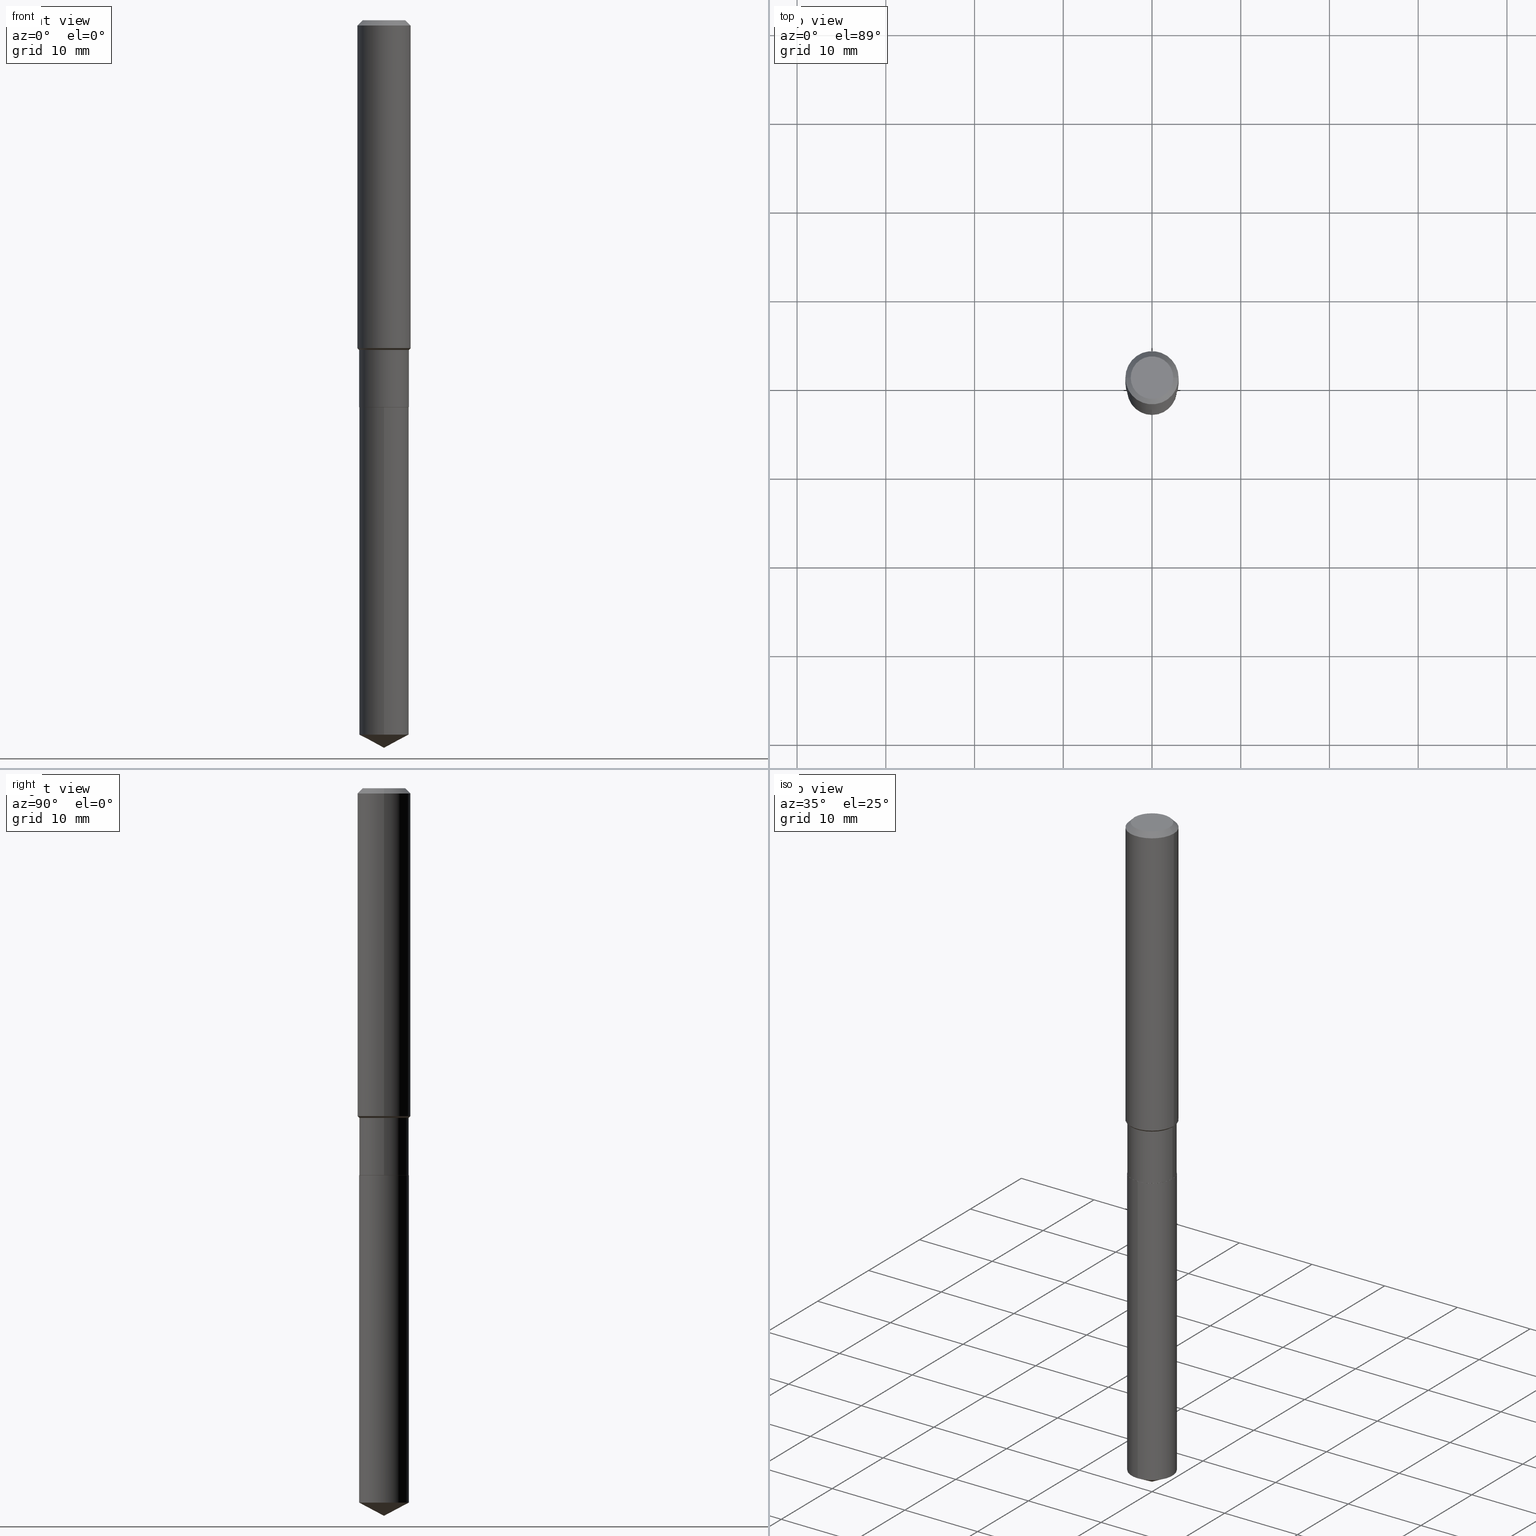
[diagram: canonical four-view strip — front | top / right | iso, engineering-drawing reading convention]
A machine part, canonical four-view strip (front | top / right | iso — engineering-drawing reading convention). The complete STEP part file that produces these views, byte-faithful:
ISO-10303-21;
HEADER;
FILE_DESCRIPTION (( 'STEP AP203' ),
    '1' );
FILE_NAME ('64826.STEP',
    '2024-04-24T19:03:40',
    ( '' ),
    ( '' ),
    'SwSTEP 2.0',
    'SolidWorks 2023',
    '' );
FILE_SCHEMA (( 'CONFIG_CONTROL_DESIGN' ));
ENDSEC;

DATA;
#1 = EDGE_CURVE ( 'NONE', #90, #467, #446, .T. ) ;
#2 = CARTESIAN_POINT ( 'NONE',  ( 7.833733661755878674E-16, 0.1102499999999889402, -3.169679035159322478 ) ) ;
#3 = DIRECTION ( 'NONE',  ( -2.445468806185136597E-29, 3.491481338843145583E-15, 1.000000000000000000 ) ) ;
#4 = AXIS2_PLACEMENT_3D ( 'NONE', #280, #368, #142 ) ;
#5 = CARTESIAN_POINT ( 'NONE',  ( -0.1180999999999999966, 7.422191030112725094E-16, -0.02362000000000014088 ) ) ;
#6 = APPROVAL ( #490, 'UNSPECIFIED' ) ;
#7 = DIRECTION ( 'NONE',  ( -2.445468806185136597E-29, 3.491481338843145583E-15, 1.000000000000000000 ) ) ;
#8 = AXIS2_PLACEMENT_3D ( 'NONE', #356, #353, #18 ) ;
#9 = ORIENTED_EDGE ( 'NONE', *, *, #259, .T. ) ;
#10 = CARTESIAN_POINT ( 'NONE',  ( -0.1102500000000000008, -4.766161647848728017E-15, -1.716000000000000192 ) ) ;
#11 = ORIENTED_EDGE ( 'NONE', *, *, #444, .T. ) ;
#12 = CIRCLE ( 'NONE', #234, 0.1102499999999999730 ) ;
#13 = EDGE_CURVE ( 'NONE', #433, #245, #105, .T. ) ;
#14 = DIRECTION ( 'NONE',  ( 1.000000000000000000, -6.982962677686266711E-15, 4.876176775795936353E-29 ) ) ;
#15 = ORIENTED_EDGE ( 'NONE', *, *, #468, .F. ) ;
#16 = CIRCLE ( 'NONE', #201, 0.09447999999999998066 ) ;
#17 = CC_DESIGN_SECURITY_CLASSIFICATION ( #488, ( #96 ) ) ;
#18 = DIRECTION ( 'NONE',  ( 1.000000000000000000, -6.982962677686266711E-15, 4.876176775795936353E-29 ) ) ;
#19 = VERTEX_POINT ( 'NONE', #401 ) ;
#20 = CIRCLE ( 'NONE', #331, 0.1102500000000000008 ) ;
#21 = CARTESIAN_POINT ( 'NONE',  ( 4.197647205816787040E-29, -5.993127718124259988E-15, -1.716500000000000137 ) ) ;
#22 = VERTEX_POINT ( 'NONE', #330 ) ;
#23 = PERSON_AND_ORGANIZATION ( #26, #48 ) ;
#24 = CIRCLE ( 'NONE', #274, 0.1097500000000000003 ) ;
#25 = DIRECTION ( 'NONE',  ( -1.000000000000000000, 6.982962677686266711E-15, 0.000000000000000000 ) ) ;
#26 = PERSON ( 'UNSPECIFIED', 'UNSPECIFIED', 'UNSPECIFIED', ('UNSPECIFIED'), ('UNSPECIFIED'), ('UNSPECIFIED') ) ;
#27 = ADVANCED_FACE ( 'NONE', ( #364 ), #484, .T. ) ;
#28 = COORDINATED_UNIVERSAL_TIME_OFFSET ( 5, 0, .BEHIND. ) ;
#29 = DIRECTION ( 'NONE',  ( -2.445468806185136597E-29, 3.491481338843145583E-15, 1.000000000000000000 ) ) ;
#30 = MECHANICAL_CONTEXT ( 'NONE', #63, 'mechanical' ) ;
#31 = DIRECTION ( 'NONE',  ( 1.000000000000000000, -6.982962677686270655E-15, 0.000000000000000000 ) ) ;
#32 = PERSON_AND_ORGANIZATION ( #26, #48 ) ;
#33 = PLANE ( 'NONE',  #487 ) ;
#34 = LOCAL_TIME ( 15, 3, 40.00000000000000000, #287 ) ;
#35 = VECTOR ( 'NONE', #186, 39.37007874015748143 ) ;
#36 = DIRECTION ( 'NONE',  ( -2.445468806185136877E-29, 3.491481338843145188E-15, 1.000000000000000000 ) ) ;
#37 = DIRECTION ( 'NONE',  ( -1.000000000000000000, 6.982962677686266711E-15, 0.000000000000000000 ) ) ;
#38 = DIRECTION ( 'NONE',  ( 1.000000000000000000, -6.982962677686270655E-15, 0.000000000000000000 ) ) ;
#39 = ADVANCED_FACE ( 'NONE', ( #403 ), #442, .T. ) ;
#40 = CYLINDRICAL_SURFACE ( 'NONE', #135, 0.1102500000000000008 ) ;
#41 = VECTOR ( 'NONE', #195, 39.37007874015748143 ) ;
#42 = ORIENTED_EDGE ( 'NONE', *, *, #358, .F. ) ;
#43 = EDGE_CURVE ( 'NONE', #245, #166, #12, .T. ) ;
#44 = DIRECTION ( 'NONE',  ( -2.445459280749813297E-29, 3.491494979808682448E-15, 1.000000000000000000 ) ) ;
#45 = DIRECTION ( 'NONE',  ( -6.982962677686266711E-15, -1.000000000000000000, 3.541896320645576252E-15 ) ) ;
#46 = ADVANCED_FACE ( 'NONE', ( #407 ), #33, .F. ) ;
#47 = FACE_OUTER_BOUND ( 'NONE', #341, .T. ) ;
#48 = ORGANIZATION ( 'UNSPECIFIED', 'UNSPECIFIED', '' ) ;
#50 = EDGE_LOOP ( 'NONE', ( #428, #137, #473, #457 ) ) ;
#49 = CIRCLE ( 'NONE', #124, 0.1102499999999999730 ) ;
#51 = DIRECTION ( 'NONE',  ( 1.000000000000000000, -6.982962677686270655E-15, 0.000000000000000000 ) ) ;
#52 = ORIENTED_EDGE ( 'NONE', *, *, #395, .T. ) ;
#53 = LINE ( 'NONE', #197, #41 ) ;
#54 = ORIENTED_EDGE ( 'NONE', *, *, #482, .F. ) ;
#55 = CYLINDRICAL_SURFACE ( 'NONE', #8, 0.1102499999999999869 ) ;
#56 = ORIENTED_EDGE ( 'NONE', *, *, #354, .F. ) ;
#57 = PRODUCT ( '64826', '64826', '', ( #30 ) ) ;
#58 = DIRECTION ( 'NONE',  ( -2.438088387897960049E-29, 3.491481338843145188E-15, 1.000000000000000000 ) ) ;
#59 = ORIENTED_EDGE ( 'NONE', *, *, #289, .F. ) ;
#60 =( CONVERSION_BASED_UNIT ( 'INCH', #240 ) LENGTH_UNIT ( ) NAMED_UNIT ( #310 ) );
#61 = VERTEX_POINT ( 'NONE', #70 ) ;
#62 = DATE_AND_TIME ( #406, #370 ) ;
#63 = APPLICATION_CONTEXT ( 'configuration controlled 3d designs of mechanical parts and assemblies' ) ;
#64 = DIRECTION ( 'NONE',  ( 1.000000000000000000, -6.982962677686264344E-15, 0.000000000000000000 ) ) ;
#65 = CC_DESIGN_APPROVAL ( #471, ( #223 ) ) ;
#66 = CIRCLE ( 'NONE', #335, 0.1102500000000000008 ) ;
#67 =( NAMED_UNIT ( * ) SI_UNIT ( $, .STERADIAN. ) SOLID_ANGLE_UNIT ( ) );
#68 = DIRECTION ( 'NONE',  ( 0.7071067811866199593, -2.468850131083015945E-15, 0.7071067811864750752 ) ) ;
#69 = EDGE_CURVE ( 'NONE', #270, #90, #478, .T. ) ;
#70 = CARTESIAN_POINT ( 'NONE',  ( -0.1180999999999999966, -1.742223384720917499E-15, -0.02362000000000014088 ) ) ;
#71 = CC_DESIGN_DATE_AND_TIME_ASSIGNMENT ( #327, #480, ( #223 ) ) ;
#72 = DIRECTION ( 'NONE',  ( 1.000000000000000000, 0.000000000000000000, 0.000000000000000000 ) ) ;
#73 = CARTESIAN_POINT ( 'NONE',  ( 7.833733661755523687E-16, 0.1102499999999940195, -1.716500000000000359 ) ) ;
#74 = CONICAL_SURFACE ( 'NONE', #140, 0.1180999999999999966, 0.7853981633974460586 ) ;
#75 = AXIS2_PLACEMENT_3D ( 'NONE', #337, #220, #190 ) ;
#76 = CIRCLE ( 'NONE', #424, 0.1181000000000001632 ) ;
#77 = DIRECTION ( 'NONE',  ( -2.445459280749813297E-29, 3.491494979808682448E-15, 1.000000000000000000 ) ) ;
#78 = CARTESIAN_POINT ( 'NONE',  ( -8.838323189251467147E-28, 1.261888624473333641E-13, 36.14177874015747705 ) ) ;
#79 = FACE_OUTER_BOUND ( 'NONE', #119, .T. ) ;
#80 = LOCAL_TIME ( 15, 3, 40.00000000000000000, #144 ) ;
#81 = LINE ( 'NONE', #189, #191 ) ;
#82 = EDGE_CURVE ( 'NONE', #90, #270, #24, .T. ) ;
#83 = LINE ( 'NONE', #332, #132 ) ;
#84 = CARTESIAN_POINT ( 'NONE',  ( 0.1181000000000001632, -5.904967814318468141E-15, -1.455049999999999732 ) ) ;
#85 = ORIENTED_EDGE ( 'NONE', *, *, #390, .T. ) ;
#86 = CONICAL_SURFACE ( 'NONE', #263, 0.1097500000000000003, 0.7853981633975507526 ) ;
#87 = CARTESIAN_POINT ( 'NONE',  ( 4.716267017698007905E-46, -6.733579360998555036E-32, -1.928573779297252010E-17 ) ) ;
#88 = ORIENTED_EDGE ( 'NONE', *, *, #358, .T. ) ;
#89 = DIRECTION ( 'NONE',  ( -1.000000000000000000, 6.982962677686265922E-15, -4.876176775795935793E-29 ) ) ;
#90 = VERTEX_POINT ( 'NONE', #477 ) ;
#91 = EDGE_CURVE ( 'NONE', #22, #19, #475, .T. ) ;
#92 = FACE_OUTER_BOUND ( 'NONE', #360, .T. ) ;
#93 = ORIENTED_EDGE ( 'NONE', *, *, #242, .T. ) ;
#94 = CARTESIAN_POINT ( 'NONE',  ( 0.1102500000000000008, -6.761253612669749957E-15, -1.716000000000000192 ) ) ;
#95 = VERTEX_POINT ( 'NONE', #147 ) ;
#96 = PRODUCT_DEFINITION_FORMATION_WITH_SPECIFIED_SOURCE ( 'ANY', '', #57, .NOT_KNOWN. ) ;
#97 = CONICAL_SURFACE ( 'NONE', #372, 74.04434902938321272, 1.082104136236484715 ) ;
#98 = EDGE_CURVE ( 'NONE', #467, #433, #115, .T. ) ;
#99 = CALENDAR_DATE ( 2024, 24, 4 ) ;
#100 = PERSON_AND_ORGANIZATION_ROLE ( 'design_supplier' ) ;
#101 = DIRECTION ( 'NONE',  ( -2.445468806185136597E-29, 3.491481338843145583E-15, 1.000000000000000000 ) ) ;
#102 = PERSON_AND_ORGANIZATION ( #26, #48 ) ;
#103 = FACE_OUTER_BOUND ( 'NONE', #230, .T. ) ;
#104 = CARTESIAN_POINT ( 'NONE',  ( 4.197647205816787040E-29, -5.993127718124259988E-15, -1.716500000000000137 ) ) ;
#105 = LINE ( 'NONE', #365, #207 ) ;
#106 = CARTESIAN_POINT ( 'NONE',  ( 0.1097500000000000003, -6.759507872000327664E-15, -1.716500000000000137 ) ) ;
#107 = AXIS2_PLACEMENT_3D ( 'NONE', #211, #101, #175 ) ;
#108 = CC_DESIGN_APPROVAL ( #6, ( #488 ) ) ;
#109 = CONICAL_SURFACE ( 'NONE', #443, 0.1097500000000000003, 0.7853981633975507526 ) ;
#110 = EDGE_CURVE ( 'NONE', #61, #125, #170, .T. ) ;
#111 = DIRECTION ( 'NONE',  ( -2.445468806185136597E-29, 3.491481338843145583E-15, 1.000000000000000000 ) ) ;
#112 = ORIENTED_EDGE ( 'NONE', *, *, #242, .F. ) ;
#113 = CARTESIAN_POINT ( 'NONE',  ( 4.197647205816787040E-29, -5.993127718124259988E-15, -1.716500000000000137 ) ) ;
#114 = CARTESIAN_POINT ( 'NONE',  ( 3.577476316568236178E-29, -5.107688050593637879E-15, -1.462900000000000089 ) ) ;
#115 = CIRCLE ( 'NONE', #308, 0.1102500000000000008 ) ;
#116 = APPROVAL_ROLE ( '' ) ;
#117 = DIRECTION ( 'NONE',  ( 1.000000000000000000, -6.982962677686267499E-15, 4.875432709231658792E-29 ) ) ;
#118 = LINE ( 'NONE', #334, #474 ) ;
#119 = EDGE_LOOP ( 'NONE', ( #112, #145, #121, #430 ) ) ;
#120 = CARTESIAN_POINT ( 'NONE',  ( 0.1102499999999999730, -5.877559685808549352E-15, -1.462900000000000089 ) ) ;
#121 = ORIENTED_EDGE ( 'NONE', *, *, #438, .T. ) ;
#122 = DIRECTION ( 'NONE',  ( -2.445468806185136597E-29, 3.491481338843145583E-15, 1.000000000000000000 ) ) ;
#123 = ADVANCED_FACE ( 'NONE', ( #209 ), #74, .T. ) ;
#125 = VERTEX_POINT ( 'NONE', #476 ) ;
#124 = AXIS2_PLACEMENT_3D ( 'NONE', #275, #165, #51 ) ;
#126 = VECTOR ( 'NONE', #312, 39.37007874015748143 ) ;
#127 = DIRECTION ( 'NONE',  ( -2.445468806185136597E-29, 3.491481338843145583E-15, 1.000000000000000000 ) ) ;
#128 = ORIENTED_EDGE ( 'NONE', *, *, #333, .T. ) ;
#129 = EDGE_CURVE ( 'NONE', #261, #228, #282, .T. ) ;
#130 = LINE ( 'NONE', #272, #156 ) ;
#131 = EDGE_LOOP ( 'NONE', ( #85, #236, #267, #56 ) ) ;
#132 = VECTOR ( 'NONE', #381, 39.37007874015748143 ) ;
#133 = LINE ( 'NONE', #283, #239 ) ;
#134 = EDGE_LOOP ( 'NONE', ( #357, #393 ) ) ;
#135 = AXIS2_PLACEMENT_3D ( 'NONE', #300, #455, #339 ) ;
#136 = APPROVAL_DATE_TIME ( #62, #471 ) ;
#137 = ORIENTED_EDGE ( 'NONE', *, *, #286, .F. ) ;
#138 = DATE_AND_TIME ( #173, #265 ) ;
#139 = DIRECTION ( 'NONE',  ( -2.445468806185136597E-29, 3.491481338843145583E-15, 1.000000000000000000 ) ) ;
#140 = AXIS2_PLACEMENT_3D ( 'NONE', #288, #172, #25 ) ;
#141 = PERSON_AND_ORGANIZATION ( #26, #48 ) ;
#142 = DIRECTION ( 'NONE',  ( 1.000000000000000000, -6.982962677686266711E-15, 4.876176775795936353E-29 ) ) ;
#143 = CIRCLE ( 'NONE', #464, 0.1102500000000000008 ) ;
#144 = COORDINATED_UNIVERSAL_TIME_OFFSET ( 5, 0, .BEHIND. ) ;
#145 = ORIENTED_EDGE ( 'NONE', *, *, #43, .T. ) ;
#146 = DIRECTION ( 'NONE',  ( 0.000000000000000000, 0.000000000000000000, 1.000000000000000000 ) ) ;
#147 = CARTESIAN_POINT ( 'NONE',  ( -7.698716352148689729E-16, -0.1102500000000059960, -1.716499999999999915 ) ) ;
#148 = CARTESIAN_POINT ( 'NONE',  ( -8.838323189251467147E-28, 1.261888624473333641E-13, 36.14177874015747705 ) ) ;
#149 = DIRECTION ( 'NONE',  ( 0.7071067811865459074, -7.319954787623249734E-15, -0.7071067811865491270 ) ) ;
#150 = APPROVAL_DATE_TIME ( #413, #6 ) ;
#151 = DIRECTION ( 'NONE',  ( -2.445468806185136597E-29, 3.491481338843145583E-15, 1.000000000000000000 ) ) ;
#152 = CARTESIAN_POINT ( 'NONE',  ( -0.1097500000000000003, -5.210657838453439520E-15, -1.716500000000000137 ) ) ;
#153 = CC_DESIGN_DATE_AND_TIME_ASSIGNMENT ( #138, #281, ( #488 ) ) ;
#154 = CC_DESIGN_APPROVAL ( #194, ( #96 ) ) ;
#155 = CYLINDRICAL_SURFACE ( 'NONE', #75, 0.1181000000000000799 ) ;
#156 = VECTOR ( 'NONE', #429, 39.37007874015748143 ) ;
#157 = DIRECTION ( 'NONE',  ( 1.000000000000000000, -6.982962677686266711E-15, 0.000000000000000000 ) ) ;
#158 = EDGE_LOOP ( 'NONE', ( #305, #52, #448, #15 ) ) ;
#159 = CC_DESIGN_PERSON_AND_ORGANIZATION_ASSIGNMENT ( #32, #177, ( #223 ) ) ;
#160 = CARTESIAN_POINT ( 'NONE',  ( 4.197647205816787040E-29, -5.993127718124259988E-15, -1.716500000000000137 ) ) ;
#161 = ORIENTED_EDGE ( 'NONE', *, *, #395, .F. ) ;
#162 = AXIS2_PLACEMENT_3D ( 'NONE', #185, #224, #37 ) ;
#163 = PLANE ( 'NONE',  #181 ) ;
#164 = ORIENTED_EDGE ( 'NONE', *, *, #13, .T. ) ;
#165 = DIRECTION ( 'NONE',  ( -2.445468806185136597E-29, 3.491481338843145583E-15, 1.000000000000000000 ) ) ;
#166 = VERTEX_POINT ( 'NONE', #437 ) ;
#167 = ADVANCED_FACE ( 'NONE', ( #103 ), #86, .T. ) ;
#168 = DIRECTION ( 'NONE',  ( -2.445459280749813297E-29, 3.491494979808682448E-15, 1.000000000000000000 ) ) ;
#169 = ORIENTED_EDGE ( 'NONE', *, *, #387, .F. ) ;
#170 = CIRCLE ( 'NONE', #351, 0.1180999999999999966 ) ;
#171 = PERSON_AND_ORGANIZATION_ROLE ( 'creator' ) ;
#172 = DIRECTION ( 'NONE',  ( 2.445468806185136597E-29, -3.491481338843145583E-15, -1.000000000000000000 ) ) ;
#173 = CALENDAR_DATE ( 2024, 24, 4 ) ;
#174 = ORIENTED_EDGE ( 'NONE', *, *, #286, .T. ) ;
#175 = DIRECTION ( 'NONE',  ( 1.000000000000000000, -6.982962677686264344E-15, 0.000000000000000000 ) ) ;
#176 = AXIS2_PLACEMENT_3D ( 'NONE', #296, #151, #486 ) ;
#177 = PERSON_AND_ORGANIZATION_ROLE ( 'creator' ) ;
#178 = CARTESIAN_POINT ( 'NONE',  ( 4.197647205816787040E-29, -5.993127718124259988E-15, -1.716500000000000137 ) ) ;
#179 = ADVANCED_FACE ( 'NONE', ( #292 ), #361, .T. ) ;
#180 = APPROVAL_PERSON_ORGANIZATION ( #102, #6, #116 ) ;
#181 = AXIS2_PLACEMENT_3D ( 'NONE', #200, #58, #462 ) ;
#182 = PERSON_AND_ORGANIZATION ( #26, #48 ) ;
#183 = DIRECTION ( 'NONE',  ( -6.982962677686266711E-15, -1.000000000000000000, 2.477866660919966807E-15 ) ) ;
#184 = ADVANCED_FACE ( 'NONE', ( #79 ), #255, .T. ) ;
#185 = CARTESIAN_POINT ( 'NONE',  ( 5.776197320209327532E-31, -8.246878922347559293E-17, -0.02362000000000014088 ) ) ;
#186 = DIRECTION ( 'NONE',  ( -2.445468806185136877E-29, 3.491481338843145188E-15, 1.000000000000000000 ) ) ;
#187 = EDGE_CURVE ( 'NONE', #22, #261, #83, .T. ) ;
#188 = PLANE ( 'NONE',  #439 ) ;
#189 = CARTESIAN_POINT ( 'NONE',  ( -0.1102499999999999730, -4.324314684418127714E-15, -1.462900000000000089 ) ) ;
#190 = DIRECTION ( 'NONE',  ( 1.000000000000000000, -6.982962677686266711E-15, 4.876176775795936353E-29 ) ) ;
#191 = VECTOR ( 'NONE', #411, 39.37007874015748143 ) ;
#192 = DIRECTION ( 'NONE',  ( -2.445468806185136597E-29, 3.491481338843145583E-15, 1.000000000000000000 ) ) ;
#193 = VERTEX_POINT ( 'NONE', #222 ) ;
#194 = APPROVAL ( #445, 'UNSPECIFIED' ) ;
#195 = DIRECTION ( 'NONE',  ( -0.7071067811866199593, 7.493145998870616062E-15, 0.7071067811864750752 ) ) ;
#196 = EDGE_LOOP ( 'NONE', ( #352, #384, #378, #206 ) ) ;
#197 = CARTESIAN_POINT ( 'NONE',  ( -0.1097500000000000003, -5.213307065627549933E-15, -1.716500000000000137 ) ) ;
#198 = EDGE_LOOP ( 'NONE', ( #88, #93, #59, #297 ) ) ;
#199 = CLOSED_SHELL ( 'NONE', ( #27, #268, #231, #278, #46 ) ) ;
#200 = CARTESIAN_POINT ( 'NONE',  ( 4.197647205816787040E-29, -5.993127718124259988E-15, -1.716500000000000137 ) ) ;
#201 = AXIS2_PLACEMENT_3D ( 'NONE', #87, #122, #421 ) ;
#202 = EDGE_LOOP ( 'NONE', ( #253, #426, #161 ) ) ;
#203 = LINE ( 'NONE', #120, #126 ) ;
#204 = ADVANCED_FACE ( 'NONE', ( #489 ), #392, .T. ) ;
#205 = ORIENTED_EDGE ( 'NONE', *, *, #458, .F. ) ;
#206 = ORIENTED_EDGE ( 'NONE', *, *, #1, .F. ) ;
#207 = VECTOR ( 'NONE', #36, 39.37007874015748143 ) ;
#208 = PERSON_AND_ORGANIZATION ( #26, #48 ) ;
#209 = FACE_OUTER_BOUND ( 'NONE', #50, .T. ) ;
#210 = DIRECTION ( 'NONE',  ( -2.445468806185136877E-29, 3.491481338843145188E-15, 1.000000000000000000 ) ) ;
#211 = CARTESIAN_POINT ( 'NONE',  ( 4.197647205816787040E-29, -5.993127718124259988E-15, -1.716500000000000137 ) ) ;
#212 = ADVANCED_FACE ( 'NONE', ( #382 ), #155, .T. ) ;
#213 = DIRECTION ( 'NONE',  ( -6.165590087286828929E-15, -0.8829475928589255451, 0.4694715627858935258 ) ) ;
#214 = CALENDAR_DATE ( 2024, 24, 4 ) ;
#215 = CC_DESIGN_PERSON_AND_ORGANIZATION_ASSIGNMENT ( #208, #362, ( #488 ) ) ;
#216 = DIRECTION ( 'NONE',  ( 2.445459280749813016E-29, -3.491494979808682448E-15, -1.000000000000000000 ) ) ;
#217 = LOCAL_TIME ( 15, 3, 40.00000000000000000, #249 ) ;
#218 = DIRECTION ( 'NONE',  ( -2.445459280749813297E-29, 3.491494979808682448E-15, 1.000000000000000000 ) ) ;
#219 = ADVANCED_BREP_SHAPE_REPRESENTATION ( '64826', ( #452, #271, #302 ), #306 ) ;
#220 = DIRECTION ( 'NONE',  ( -2.445468806185136597E-29, 3.491481338843145583E-15, 1.000000000000000000 ) ) ;
#221 = AXIS2_PLACEMENT_3D ( 'NONE', #114, #3, #38 ) ;
#222 = CARTESIAN_POINT ( 'NONE',  ( 0.09447999999999998066, -7.704367267948738690E-16, -1.928573779296752193E-17 ) ) ;
#223 = PRODUCT_DEFINITION ( 'UNKNOWN', '', #96, #369 ) ;
#224 = DIRECTION ( 'NONE',  ( 2.445468806185136597E-29, -3.491481338843145583E-15, -1.000000000000000000 ) ) ;
#225 = DIRECTION ( 'NONE',  ( -2.445459280749813297E-29, 3.491494979808682448E-15, 1.000000000000000000 ) ) ;
#226 = DIRECTION ( 'NONE',  ( -2.445459280749813297E-29, 3.491494979808682448E-15, 1.000000000000000000 ) ) ;
#227 = CARTESIAN_POINT ( 'NONE',  ( 5.776197320209327532E-31, -8.246878922347559293E-17, -0.02362000000000014088 ) ) ;
#228 = VERTEX_POINT ( 'NONE', #303 ) ;
#229 = LINE ( 'NONE', #304, #251 ) ;
#230 = EDGE_LOOP ( 'NONE', ( #423, #355, #264, #247 ) ) ;
#231 = ADVANCED_FACE ( 'NONE', ( #254 ), #294, .T. ) ;
#232 = CARTESIAN_POINT ( 'NONE',  ( 3.558279386439682894E-29, -5.080279922083718301E-15, -1.455049999999999732 ) ) ;
#233 = ORIENTED_EDGE ( 'NONE', *, *, #98, .T. ) ;
#234 = AXIS2_PLACEMENT_3D ( 'NONE', #435, #29, #31 ) ;
#235 = DIRECTION ( 'NONE',  ( -2.445459280749813297E-29, 3.491494979808682448E-15, 1.000000000000000000 ) ) ;
#236 = ORIENTED_EDGE ( 'NONE', *, *, #129, .T. ) ;
#237 =( LENGTH_UNIT ( ) NAMED_UNIT ( * ) SI_UNIT ( $, .METRE. ) );
#238 = EDGE_LOOP ( 'NONE', ( #318, #348, #250, #338 ) ) ;
#239 = VECTOR ( 'NONE', #210, 39.37007874015748143 ) ;
#240 = LENGTH_MEASURE_WITH_UNIT ( LENGTH_MEASURE( 0.02539999999999999897 ), #237 );
#241 = DIRECTION ( 'NONE',  ( -2.445468806185136597E-29, 3.491481338843145583E-15, 1.000000000000000000 ) ) ;
#242 = EDGE_CURVE ( 'NONE', #245, #293, #81, .T. ) ;
#243 = VECTOR ( 'NONE', #68, 39.37007874015748143 ) ;
#244 = PERSON_AND_ORGANIZATION ( #26, #48 ) ;
#245 = VERTEX_POINT ( 'NONE', #418 ) ;
#246 = AXIS2_PLACEMENT_3D ( 'NONE', #227, #192, #157 ) ;
#247 = ORIENTED_EDGE ( 'NONE', *, *, #340, .F. ) ;
#248 = CARTESIAN_POINT ( 'NONE',  ( 4.197647205816787040E-29, -5.993127718124259988E-15, -1.716500000000000137 ) ) ;
#249 = COORDINATED_UNIVERSAL_TIME_OFFSET ( 5, 0, .BEHIND. ) ;
#250 = ORIENTED_EDGE ( 'NONE', *, *, #333, .F. ) ;
#251 = VECTOR ( 'NONE', #235, 39.37007874015748143 ) ;
#252 = DIRECTION ( 'NONE',  ( 1.000000000000000000, -6.982962677686263555E-15, 0.000000000000000000 ) ) ;
#253 = ORIENTED_EDGE ( 'NONE', *, *, #187, .F. ) ;
#254 = FACE_OUTER_BOUND ( 'NONE', #202, .T. ) ;
#255 = CONICAL_SURFACE ( 'NONE', #221, 0.1102499999999999730, 0.7853981633974418397 ) ;
#256 = LINE ( 'NONE', #453, #35 ) ;
#257 = AXIS2_PLACEMENT_3D ( 'NONE', #432, #315, #347 ) ;
#258 = CARTESIAN_POINT ( 'NONE',  ( -0.1181000000000001632, -4.241128951151038526E-15, -1.455049999999999732 ) ) ;
#259 = EDGE_CURVE ( 'NONE', #284, #125, #256, .T. ) ;
#260 = FACE_OUTER_BOUND ( 'NONE', #346, .T. ) ;
#261 = VERTEX_POINT ( 'NONE', #2 ) ;
#262 = DIRECTION ( 'NONE',  ( -2.445468806185136597E-29, 3.491481338843145583E-15, 1.000000000000000000 ) ) ;
#263 = AXIS2_PLACEMENT_3D ( 'NONE', #113, #414, #373 ) ;
#264 = ORIENTED_EDGE ( 'NONE', *, *, #1, .T. ) ;
#265 = LOCAL_TIME ( 15, 3, 40.00000000000000000, #28 ) ;
#266 = DIRECTION ( 'NONE',  ( 2.438088387897960049E-29, -3.491481338843145188E-15, -1.000000000000000000 ) ) ;
#267 = ORIENTED_EDGE ( 'NONE', *, *, #366, .F. ) ;
#268 = ADVANCED_FACE ( 'NONE', ( #451 ), #97, .T. ) ;
#269 = DIRECTION ( 'NONE',  ( 1.000000000000000000, -6.982962677686264344E-15, 0.000000000000000000 ) ) ;
#270 = VERTEX_POINT ( 'NONE', #152 ) ;
#271 = MANIFOLD_SOLID_BREP ( 'Body-Move/Copy2[2]', #461 ) ;
#272 = CARTESIAN_POINT ( 'NONE',  ( -0.1181000000000000799, 8.391509709326788873E-16, -5.809262341591047988E-30 ) ) ;
#273 = EDGE_LOOP ( 'NONE', ( #420, #386, #415 ) ) ;
#274 = AXIS2_PLACEMENT_3D ( 'NONE', #104, #139, #64 ) ;
#275 = CARTESIAN_POINT ( 'NONE',  ( 3.577476316568236178E-29, -5.107688050593637879E-15, -1.462900000000000089 ) ) ;
#276 = AXIS2_PLACEMENT_3D ( 'NONE', #148, #44, #376 ) ;
#277 = ORIENTED_EDGE ( 'NONE', *, *, #13, .F. ) ;
#278 = ADVANCED_FACE ( 'NONE', ( #416 ), #40, .T. ) ;
#279 = APPROVAL_DATE_TIME ( #398, #194 ) ;
#280 = CARTESIAN_POINT ( 'NONE',  ( 0.000000000000000000, 0.000000000000000000, 0.000000000000000000 ) ) ;
#281 = DATE_TIME_ROLE ( 'classification_date' ) ;
#282 = LINE ( 'NONE', #73, #342 ) ;
#283 = CARTESIAN_POINT ( 'NONE',  ( 0.1102499999999999869, -7.698716352149107826E-16, 5.375984895315018903E-30 ) ) ;
#284 = VERTEX_POINT ( 'NONE', #84 ) ;
#285 = AXIS2_PLACEMENT_3D ( 'NONE', #317, #427, #14 ) ;
#286 = EDGE_CURVE ( 'NONE', #321, #193, #363, .T. ) ;
#287 = COORDINATED_UNIVERSAL_TIME_OFFSET ( 5, 0, .BEHIND. ) ;
#288 = CARTESIAN_POINT ( 'NONE',  ( 5.776197320209327532E-31, -8.246878922347559293E-17, -0.02362000000000014088 ) ) ;
#289 = EDGE_CURVE ( 'NONE', #284, #293, #76, .T. ) ;
#290 = APPROVAL_ROLE ( '' ) ;
#291 = CARTESIAN_POINT ( 'NONE',  ( 4.196424471413695360E-29, -5.991381977454838484E-15, -1.716000000000000192 ) ) ;
#292 = FACE_OUTER_BOUND ( 'NONE', #309, .T. ) ;
#293 = VERTEX_POINT ( 'NONE', #258 ) ;
#294 = CONICAL_SURFACE ( 'NONE', #276, 74.04434902938321272, 1.082104136236484715 ) ;
#295 = EDGE_CURVE ( 'NONE', #321, #61, #343, .T. ) ;
#296 = CARTESIAN_POINT ( 'NONE',  ( 3.577476316568236178E-29, -5.107688050593637879E-15, -1.462900000000000089 ) ) ;
#297 = ORIENTED_EDGE ( 'NONE', *, *, #438, .F. ) ;
#298 = CARTESIAN_POINT ( 'NONE',  ( 4.716267017698007905E-46, -6.733579360998555036E-32, -1.928573779297252010E-17 ) ) ;
#299 = SHAPE_DEFINITION_REPRESENTATION ( #485, #219 ) ;
#300 = CARTESIAN_POINT ( 'NONE',  ( 4.197647205816787040E-29, -5.993127718124259988E-15, -1.716500000000000137 ) ) ;
#301 = EDGE_CURVE ( 'NONE', #193, #125, #118, .T. ) ;
#302 = AXIS2_PLACEMENT_3D ( 'NONE', #483, #146, #72 ) ;
#303 = CARTESIAN_POINT ( 'NONE',  ( 7.833733661755882619E-16, 0.1102499999999940195, -1.716500000000000359 ) ) ;
#304 = CARTESIAN_POINT ( 'NONE',  ( -7.698716352148689729E-16, -0.1102500000000059960, -1.716499999999999915 ) ) ;
#305 = ORIENTED_EDGE ( 'NONE', *, *, #129, .F. ) ;
#306 =( GEOMETRIC_REPRESENTATION_CONTEXT ( 3 ) GLOBAL_UNCERTAINTY_ASSIGNED_CONTEXT ( ( #405 ) ) GLOBAL_UNIT_ASSIGNED_CONTEXT ( ( #60, #322, #67 ) ) REPRESENTATION_CONTEXT ( 'NONE', 'WORKASPACE' ) );
#307 = CARTESIAN_POINT ( 'NONE',  ( 4.197647205816787040E-29, -5.993127718124259988E-15, -1.716500000000000137 ) ) ;
#308 = AXIS2_PLACEMENT_3D ( 'NONE', #291, #241, #328 ) ;
#309 = EDGE_LOOP ( 'NONE', ( #169, #463, #128, #399 ) ) ;
#310 = DIMENSIONAL_EXPONENTS ( 1.000000000000000000, 0.000000000000000000, 0.000000000000000000, 0.000000000000000000, 0.000000000000000000, 0.000000000000000000, 0.000000000000000000 ) ;
#311 = APPROVAL_PERSON_ORGANIZATION ( #141, #471, #440 ) ;
#312 = DIRECTION ( 'NONE',  ( 0.7071067811865429098, -2.468850131082208940E-15, 0.7071067811865521247 ) ) ;
#313 = ADVANCED_FACE ( 'NONE', ( #260 ), #188, .F. ) ;
#314 = EDGE_LOOP ( 'NONE', ( #397, #389 ) ) ;
#315 = DIRECTION ( 'NONE',  ( -2.445459280749813297E-29, 3.491494979808682448E-15, 1.000000000000000000 ) ) ;
#316 = ORIENTED_EDGE ( 'NONE', *, *, #387, .T. ) ;
#317 = CARTESIAN_POINT ( 'NONE',  ( 0.000000000000000000, 0.000000000000000000, 0.000000000000000000 ) ) ;
#318 = ORIENTED_EDGE ( 'NONE', *, *, #289, .T. ) ;
#319 = APPROVAL_PERSON_ORGANIZATION ( #182, #194, #290 ) ;
#320 = APPLICATION_PROTOCOL_DEFINITION ( 'international standard', 'config_control_design', 1994, #63 ) ;
#321 = VERTEX_POINT ( 'NONE', #469 ) ;
#322 =( NAMED_UNIT ( * ) PLANE_ANGLE_UNIT ( ) SI_UNIT ( $, .RADIAN. ) );
#323 = CARTESIAN_POINT ( 'NONE',  ( 5.776197320209327532E-31, -8.246878922347559293E-17, -0.02362000000000014088 ) ) ;
#324 = APPLICATION_PROTOCOL_DEFINITION ( 'international standard', 'config_control_design', 1994, #336 ) ;
#325 = CARTESIAN_POINT ( 'NONE',  ( 7.894676196044622738E-29, -1.127159324331637047E-14, -3.228299999999999947 ) ) ;
#326 = VECTOR ( 'NONE', #213, 39.37007874015748854 ) ;
#327 = DATE_AND_TIME ( #214, #34 ) ;
#328 = DIRECTION ( 'NONE',  ( 1.000000000000000000, -6.982962677686269077E-15, 0.000000000000000000 ) ) ;
#329 = CC_DESIGN_PERSON_AND_ORGANIZATION_ASSIGNMENT ( #244, #171, ( #96 ) ) ;
#330 = CARTESIAN_POINT ( 'NONE',  ( 7.894676196044622738E-29, -1.127159324331637047E-14, -3.228299999999999947 ) ) ;
#331 = AXIS2_PLACEMENT_3D ( 'NONE', #21, #168, #472 ) ;
#332 = CARTESIAN_POINT ( 'NONE',  ( 7.894709183611673792E-29, -1.127154641388168452E-14, -3.228299999999999947 ) ) ;
#333 = EDGE_CURVE ( 'NONE', #125, #61, #417, .T. ) ;
#334 = CARTESIAN_POINT ( 'NONE',  ( 0.1180999999999999966, -8.926936027602933910E-16, -0.02362000000000014088 ) ) ;
#335 = AXIS2_PLACEMENT_3D ( 'NONE', #385, #262, #345 ) ;
#336 = APPLICATION_CONTEXT ( 'configuration controlled 3d designs of mechanical parts and assemblies' ) ;
#337 = CARTESIAN_POINT ( 'NONE',  ( 0.000000000000000000, 0.000000000000000000, 0.000000000000000000 ) ) ;
#338 = ORIENTED_EDGE ( 'NONE', *, *, #259, .F. ) ;
#339 = DIRECTION ( 'NONE',  ( -6.982962677686266711E-15, -1.000000000000000000, 2.477866660919966807E-15 ) ) ;
#340 = EDGE_CURVE ( 'NONE', #433, #467, #66, .T. ) ;
#341 = EDGE_LOOP ( 'NONE', ( #205, #11, #9, #450 ) ) ;
#342 = VECTOR ( 'NONE', #77, 39.37007874015748143 ) ;
#343 = LINE ( 'NONE', #5, #344 ) ;
#344 = VECTOR ( 'NONE', #375, 39.37007874015748143 ) ;
#345 = DIRECTION ( 'NONE',  ( 1.000000000000000000, -6.982962677686269077E-15, 0.000000000000000000 ) ) ;
#346 = EDGE_LOOP ( 'NONE', ( #174, #316 ) ) ;
#347 = DIRECTION ( 'NONE',  ( -6.982962677686266711E-15, -1.000000000000000000, 4.955733321839933614E-15 ) ) ;
#348 = ORIENTED_EDGE ( 'NONE', *, *, #458, .T. ) ;
#349 = CC_DESIGN_PERSON_AND_ORGANIZATION_ASSIGNMENT ( #434, #100, ( #96 ) ) ;
#350 = CYLINDRICAL_SURFACE ( 'NONE', #285, 0.1181000000000000799 ) ;
#351 = AXIS2_PLACEMENT_3D ( 'NONE', #323, #410, #481 ) ;
#352 = ORIENTED_EDGE ( 'NONE', *, *, #82, .T. ) ;
#353 = DIRECTION ( 'NONE',  ( -2.445468806185136597E-29, 3.491481338843145583E-15, 1.000000000000000000 ) ) ;
#354 = EDGE_CURVE ( 'NONE', #19, #95, #229, .T. ) ;
#355 = ORIENTED_EDGE ( 'NONE', *, *, #69, .T. ) ;
#356 = CARTESIAN_POINT ( 'NONE',  ( 0.000000000000000000, 0.000000000000000000, 0.000000000000000000 ) ) ;
#357 = ORIENTED_EDGE ( 'NONE', *, *, #366, .T. ) ;
#358 = EDGE_CURVE ( 'NONE', #166, #245, #49, .T. ) ;
#359 = APPROVAL_STATUS ( 'not_yet_approved' ) ;
#360 = EDGE_LOOP ( 'NONE', ( #277, #412, #470, #460 ) ) ;
#361 = CONICAL_SURFACE ( 'NONE', #162, 0.1180999999999999966, 0.7853981633974460586 ) ;
#362 = PERSON_AND_ORGANIZATION_ROLE ( 'classification_officer' ) ;
#363 = CIRCLE ( 'NONE', #377, 0.09447999999999998066 ) ;
#364 = FACE_OUTER_BOUND ( 'NONE', #131, .T. ) ;
#365 = CARTESIAN_POINT ( 'NONE',  ( -0.1102499999999999869, 7.833733661755103618E-16, -5.423125937006033469E-30 ) ) ;
#366 = EDGE_CURVE ( 'NONE', #95, #228, #143, .T. ) ;
#367 = PERSON_AND_ORGANIZATION_ROLE ( 'design_owner' ) ;
#368 = DIRECTION ( 'NONE',  ( -2.445468806185136597E-29, 3.491481338843145583E-15, 1.000000000000000000 ) ) ;
#369 = DESIGN_CONTEXT ( 'detailed design', #336, 'design' ) ;
#370 = LOCAL_TIME ( 15, 3, 40.00000000000000000, #436 ) ;
#371 = EDGE_LOOP ( 'NONE', ( #233, #164, #42, #54 ) ) ;
#372 = AXIS2_PLACEMENT_3D ( 'NONE', #78, #225, #45 ) ;
#373 = DIRECTION ( 'NONE',  ( 1.000000000000000000, -6.982962677686264344E-15, 0.000000000000000000 ) ) ;
#374 = EDGE_CURVE ( 'NONE', #270, #433, #53, .T. ) ;
#375 = DIRECTION ( 'NONE',  ( -0.7071067811865459074, 2.468850131082240100E-15, -0.7071067811865491270 ) ) ;
#376 = DIRECTION ( 'NONE',  ( -6.982962677686266711E-15, -1.000000000000000000, 3.541896320645576252E-15 ) ) ;
#378 = ORIENTED_EDGE ( 'NONE', *, *, #98, .F. ) ;
#377 = AXIS2_PLACEMENT_3D ( 'NONE', #298, #449, #117 ) ;
#379 = CALENDAR_DATE ( 2024, 24, 4 ) ;
#380 = ADVANCED_FACE ( 'NONE', ( #47 ), #350, .T. ) ;
#381 = DIRECTION ( 'NONE',  ( 6.273719981627759766E-15, 0.8829475928589287648, 0.4694715627858873086 ) ) ;
#382 = FACE_OUTER_BOUND ( 'NONE', #238, .T. ) ;
#383 = DIRECTION ( 'NONE',  ( -6.982962677686266711E-15, -1.000000000000000000, 2.477866660919966807E-15 ) ) ;
#384 = ORIENTED_EDGE ( 'NONE', *, *, #374, .T. ) ;
#385 = CARTESIAN_POINT ( 'NONE',  ( 4.196424471413695360E-29, -5.991381977454838484E-15, -1.716000000000000192 ) ) ;
#386 = ORIENTED_EDGE ( 'NONE', *, *, #187, .T. ) ;
#387 = EDGE_CURVE ( 'NONE', #193, #321, #16, .T. ) ;
#388 = DIRECTION ( 'NONE',  ( -2.445459280749813297E-29, 3.491494979808682448E-15, 1.000000000000000000 ) ) ;
#389 = ORIENTED_EDGE ( 'NONE', *, *, #69, .F. ) ;
#390 = EDGE_CURVE ( 'NONE', #19, #261, #479, .T. ) ;
#391 = CARTESIAN_POINT ( 'NONE',  ( 7.751337363938210941E-29, -1.106689502414625700E-14, -3.169679035159322034 ) ) ;
#392 = CONICAL_SURFACE ( 'NONE', #176, 0.1102499999999999730, 0.7853981633974418397 ) ;
#393 = ORIENTED_EDGE ( 'NONE', *, *, #468, .T. ) ;
#394 = AXIS2_PLACEMENT_3D ( 'NONE', #391, #226, #396 ) ;
#395 = EDGE_CURVE ( 'NONE', #261, #19, #465, .T. ) ;
#396 = DIRECTION ( 'NONE',  ( -6.982962677686266711E-15, -1.000000000000000000, 4.955733321839933614E-15 ) ) ;
#397 = ORIENTED_EDGE ( 'NONE', *, *, #82, .F. ) ;
#398 = DATE_AND_TIME ( #99, #80 ) ;
#399 = ORIENTED_EDGE ( 'NONE', *, *, #295, .F. ) ;
#400 = SECURITY_CLASSIFICATION_LEVEL ( 'unclassified' ) ;
#401 = CARTESIAN_POINT ( 'NONE',  ( -7.698716352148333756E-16, -0.1102500000000110753, -3.169679035159321590 ) ) ;
#402 = AXIS2_PLACEMENT_3D ( 'NONE', #178, #218, #183 ) ;
#403 = FACE_OUTER_BOUND ( 'NONE', #371, .T. ) ;
#404 = ADVANCED_FACE ( 'NONE', ( #425 ), #163, .F. ) ;
#405 = UNCERTAINTY_MEASURE_WITH_UNIT (LENGTH_MEASURE( 1.000000000000000082E-05 ), #60, 'distance_accuracy_value', 'NONE');
#406 = CALENDAR_DATE ( 2024, 24, 4 ) ;
#407 = FACE_OUTER_BOUND ( 'NONE', #134, .T. ) ;
#408 = DIRECTION ( 'NONE',  ( 6.982962677686265922E-15, 1.000000000000000000, -3.491494979808682448E-15 ) ) ;
#409 = PRODUCT_RELATED_PRODUCT_CATEGORY ( 'detail', '', ( #57 ) ) ;
#410 = DIRECTION ( 'NONE',  ( -2.445468806185136597E-29, 3.491481338843145583E-15, 1.000000000000000000 ) ) ;
#411 = DIRECTION ( 'NONE',  ( -0.7071067811865429098, 7.493145998870338383E-15, 0.7071067811865521247 ) ) ;
#412 = ORIENTED_EDGE ( 'NONE', *, *, #340, .T. ) ;
#413 = DATE_AND_TIME ( #379, #217 ) ;
#414 = DIRECTION ( 'NONE',  ( -2.445468806185136597E-29, 3.491481338843145583E-15, 1.000000000000000000 ) ) ;
#415 = ORIENTED_EDGE ( 'NONE', *, *, #390, .F. ) ;
#416 = FACE_OUTER_BOUND ( 'NONE', #158, .T. ) ;
#417 = CIRCLE ( 'NONE', #246, 0.1180999999999999966 ) ;
#418 = CARTESIAN_POINT ( 'NONE',  ( -0.1102499999999999730, -4.766161647848728017E-15, -1.462900000000000089 ) ) ;
#419 = CARTESIAN_POINT ( 'NONE',  ( 2.358133508849003952E-46, -3.366789680499277518E-32, -9.642868896486260050E-18 ) ) ;
#420 = ORIENTED_EDGE ( 'NONE', *, *, #91, .F. ) ;
#421 = DIRECTION ( 'NONE',  ( 1.000000000000000000, -6.982962677686267499E-15, 4.875432709231658792E-29 ) ) ;
#422 = CC_DESIGN_PERSON_AND_ORGANIZATION_ASSIGNMENT ( #23, #367, ( #57 ) ) ;
#423 = ORIENTED_EDGE ( 'NONE', *, *, #374, .F. ) ;
#424 = AXIS2_PLACEMENT_3D ( 'NONE', #456, #111, #252 ) ;
#425 = FACE_OUTER_BOUND ( 'NONE', #314, .T. ) ;
#426 = ORIENTED_EDGE ( 'NONE', *, *, #91, .T. ) ;
#427 = DIRECTION ( 'NONE',  ( -2.445468806185136597E-29, 3.491481338843145583E-15, 1.000000000000000000 ) ) ;
#428 = ORIENTED_EDGE ( 'NONE', *, *, #301, .F. ) ;
#429 = DIRECTION ( 'NONE',  ( -2.445468806185136877E-29, 3.491481338843145188E-15, 1.000000000000000000 ) ) ;
#430 = ORIENTED_EDGE ( 'NONE', *, *, #444, .F. ) ;
#431 = AXIS2_PLACEMENT_3D ( 'NONE', #232, #7, #459 ) ;
#432 = CARTESIAN_POINT ( 'NONE',  ( 7.751337363938210941E-29, -1.106689502414625700E-14, -3.169679035159322034 ) ) ;
#433 = VERTEX_POINT ( 'NONE', #10 ) ;
#434 = PERSON_AND_ORGANIZATION ( #26, #48 ) ;
#435 = CARTESIAN_POINT ( 'NONE',  ( 3.577476316568236178E-29, -5.107688050593637879E-15, -1.462900000000000089 ) ) ;
#436 = COORDINATED_UNIVERSAL_TIME_OFFSET ( 5, 0, .BEHIND. ) ;
#437 = CARTESIAN_POINT ( 'NONE',  ( 0.1102499999999999730, -5.877559685808549352E-15, -1.462900000000000089 ) ) ;
#438 = EDGE_CURVE ( 'NONE', #166, #284, #203, .T. ) ;
#439 = AXIS2_PLACEMENT_3D ( 'NONE', #419, #266, #89 ) ;
#440 = APPROVAL_ROLE ( '' ) ;
#442 = CYLINDRICAL_SURFACE ( 'NONE', #4, 0.1102499999999999869 ) ;
#441 = CIRCLE ( 'NONE', #431, 0.1181000000000001632 ) ;
#443 = AXIS2_PLACEMENT_3D ( 'NONE', #307, #127, #269 ) ;
#444 = EDGE_CURVE ( 'NONE', #293, #284, #441, .T. ) ;
#445 = APPROVAL_STATUS ( 'not_yet_approved' ) ;
#446 = LINE ( 'NONE', #106, #243 ) ;
#447 = ADVANCED_FACE ( 'NONE', ( #466 ), #109, .T. ) ;
#448 = ORIENTED_EDGE ( 'NONE', *, *, #354, .T. ) ;
#449 = DIRECTION ( 'NONE',  ( -2.445468806185136597E-29, 3.491481338843145583E-15, 1.000000000000000000 ) ) ;
#450 = ORIENTED_EDGE ( 'NONE', *, *, #110, .F. ) ;
#451 = FACE_OUTER_BOUND ( 'NONE', #273, .T. ) ;
#452 = MANIFOLD_SOLID_BREP ( 'Body-Move/Copy2[1]', #199 ) ;
#453 = CARTESIAN_POINT ( 'NONE',  ( 0.1181000000000000799, -8.246878922347486570E-16, 5.758764772215004644E-30 ) ) ;
#454 = ADVANCED_FACE ( 'NONE', ( #92 ), #55, .T. ) ;
#455 = DIRECTION ( 'NONE',  ( -2.445459280749813297E-29, 3.491494979808682448E-15, 1.000000000000000000 ) ) ;
#456 = CARTESIAN_POINT ( 'NONE',  ( 3.558279386439682894E-29, -5.080279922083718301E-15, -1.455049999999999732 ) ) ;
#457 = ORIENTED_EDGE ( 'NONE', *, *, #110, .T. ) ;
#458 = EDGE_CURVE ( 'NONE', #293, #61, #130, .T. ) ;
#459 = DIRECTION ( 'NONE',  ( 1.000000000000000000, -6.982962677686263555E-15, 0.000000000000000000 ) ) ;
#460 = ORIENTED_EDGE ( 'NONE', *, *, #43, .F. ) ;
#461 = CLOSED_SHELL ( 'NONE', ( #447, #179, #212, #204, #39, #454, #184, #380, #123, #313, #404, #167 ) ) ;
#462 = DIRECTION ( 'NONE',  ( 1.000000000000000000, -6.982962677686265922E-15, 4.876176775795935793E-29 ) ) ;
#463 = ORIENTED_EDGE ( 'NONE', *, *, #301, .T. ) ;
#464 = AXIS2_PLACEMENT_3D ( 'NONE', #160, #388, #383 ) ;
#465 = CIRCLE ( 'NONE', #394, 0.1102500000000000008 ) ;
#466 = FACE_OUTER_BOUND ( 'NONE', #196, .T. ) ;
#467 = VERTEX_POINT ( 'NONE', #94 ) ;
#468 = EDGE_CURVE ( 'NONE', #228, #95, #20, .T. ) ;
#469 = CARTESIAN_POINT ( 'NONE',  ( -0.09447999999999998066, 7.009847083995354710E-16, -1.928573779297727792E-17 ) ) ;
#470 = ORIENTED_EDGE ( 'NONE', *, *, #482, .T. ) ;
#471 = APPROVAL ( #359, 'UNSPECIFIED' ) ;
#472 = DIRECTION ( 'NONE',  ( -6.982962677686266711E-15, -1.000000000000000000, 2.477866660919966807E-15 ) ) ;
#473 = ORIENTED_EDGE ( 'NONE', *, *, #295, .T. ) ;
#474 = VECTOR ( 'NONE', #149, 39.37007874015748143 ) ;
#475 = LINE ( 'NONE', #325, #326 ) ;
#476 = CARTESIAN_POINT ( 'NONE',  ( 0.1180999999999999966, -9.071566814582237199E-16, -0.02362000000000014088 ) ) ;
#477 = CARTESIAN_POINT ( 'NONE',  ( 0.1097500000000000003, -6.759507872000327664E-15, -1.716500000000000137 ) ) ;
#478 = CIRCLE ( 'NONE', #107, 0.1097500000000000003 ) ;
#479 = CIRCLE ( 'NONE', #257, 0.1102500000000000008 ) ;
#480 = DATE_TIME_ROLE ( 'creation_date' ) ;
#481 = DIRECTION ( 'NONE',  ( 1.000000000000000000, -6.982962677686266711E-15, 0.000000000000000000 ) ) ;
#482 = EDGE_CURVE ( 'NONE', #467, #166, #133, .T. ) ;
#483 = CARTESIAN_POINT ( 'NONE',  ( 0.000000000000000000, 0.000000000000000000, 0.000000000000000000 ) ) ;
#484 = CYLINDRICAL_SURFACE ( 'NONE', #402, 0.1102500000000000008 ) ;
#485 = PRODUCT_DEFINITION_SHAPE ( 'NONE', 'NONE',  #223 ) ;
#486 = DIRECTION ( 'NONE',  ( 1.000000000000000000, -6.982962677686270655E-15, 0.000000000000000000 ) ) ;
#487 = AXIS2_PLACEMENT_3D ( 'NONE', #248, #216, #408 ) ;
#488 = SECURITY_CLASSIFICATION ( '', '', #400 ) ;
#489 = FACE_OUTER_BOUND ( 'NONE', #198, .T. ) ;
#490 = APPROVAL_STATUS ( 'not_yet_approved' ) ;
ENDSEC;
END-ISO-10303-21;
